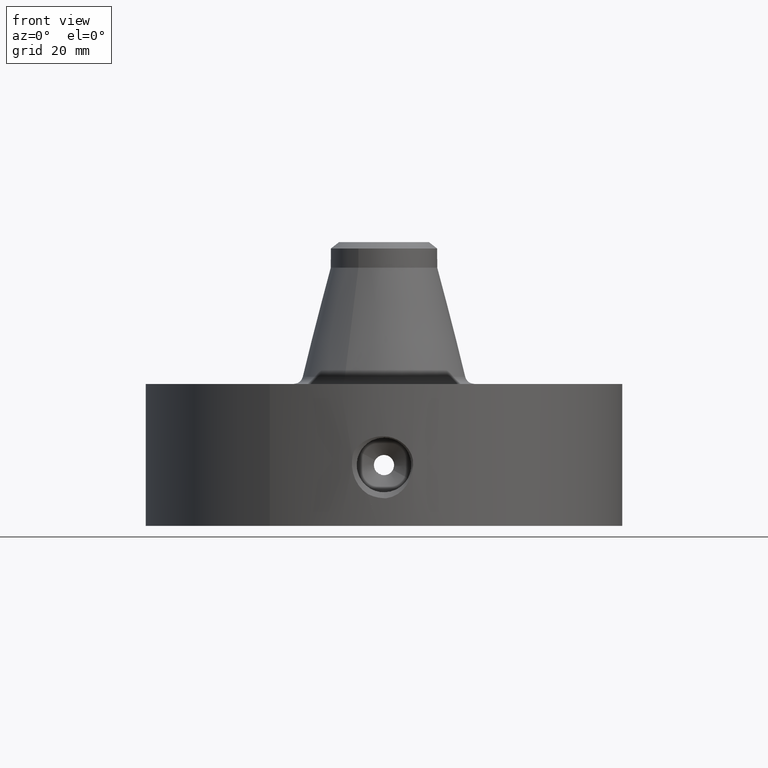
[diagram: clean part render]
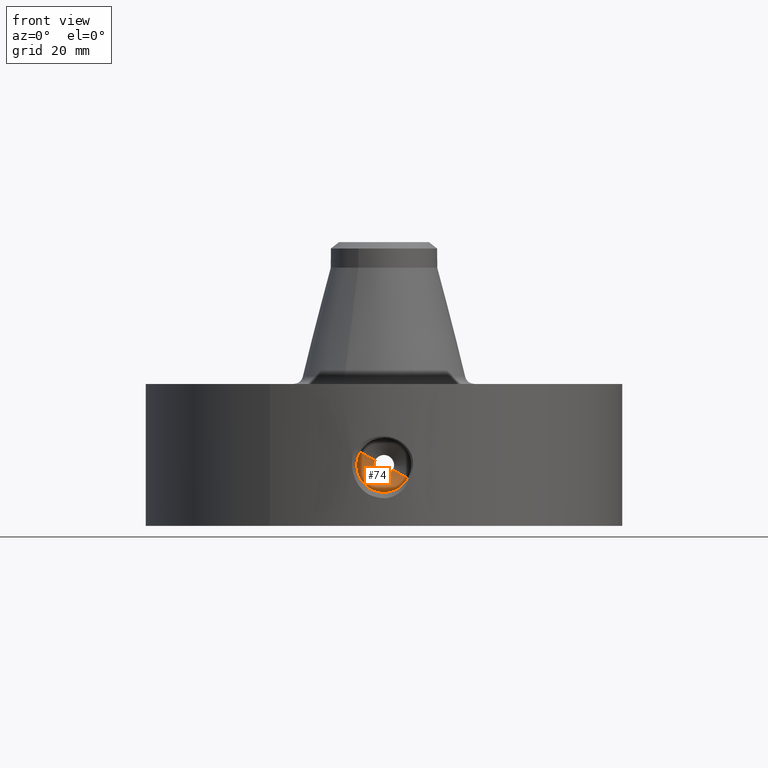
[diagram: same view with one face highlighted and labeled with its STEP entity id]
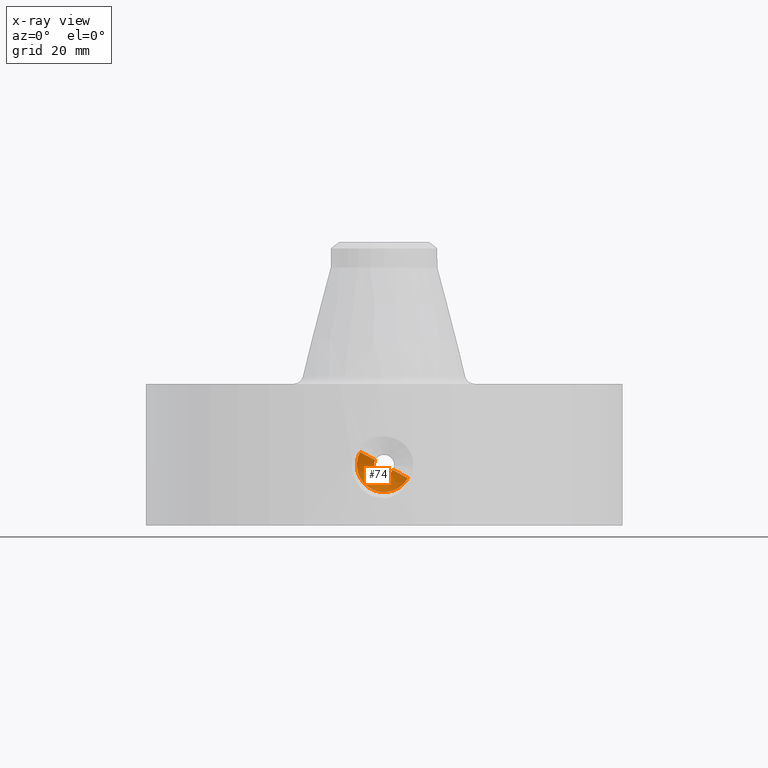
[diagram: x-ray of the same camera — body ghosted, the highlighted face saturated]
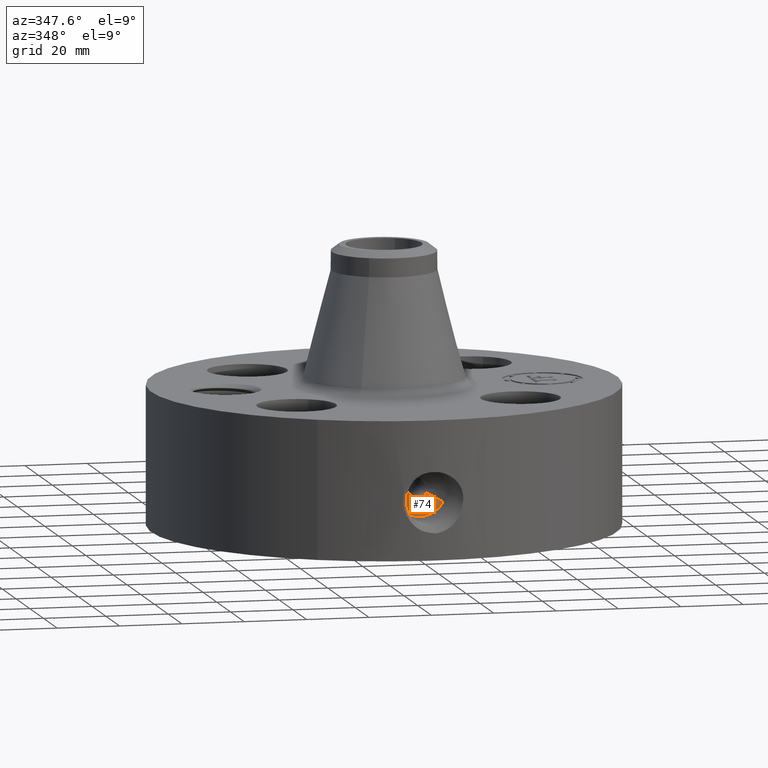
[diagram: same view with one face highlighted and labeled with its STEP entity id]
A machine part, front view. The second image highlights one B-rep face of the part: STEP entity #74.
The next image is the same camera in x-ray: the body ghosted, the highlighted face saturated — about 0% of this face is hidden behind the body in this view.
A second angle (auxiliary view) of the same face is appended — the face is thin or edge-on in the first view.
In plain terms, the highlighted conical surface has half-angle 60 deg.
Its self-contained STEP definition (entity closure, byte-faithful):
#38=AXIS2_PLACEMENT_3D('Cone Axis2P3D',#35,#36,#37) ;
#51=AXIS2_PLACEMENT_3D('Circle Axis2P3D',#49,#50,$) ;
#65=AXIS2_PLACEMENT_3D('Circle Axis2P3D',#63,#64,$) ;
#35=CARTESIAN_POINT('Axis2P3D Location',(3.26025971625E-015,-1.94321662098,0.750000000003)) ;
#40=CARTESIAN_POINT('Line Origine',(-0.202254259083,-2.00410831049,0.860492005322)) ;
#44=CARTESIAN_POINT('Vertex',(-0.109697820237,-1.94321662098,0.809928192329)) ;
#46=CARTESIAN_POINT('Vertex',(-0.29481069793,-2.06500000001,0.911055818315)) ;
#49=CARTESIAN_POINT('Axis2P3D Location',(3.23788847245E-015,-2.06500000001,0.750000000003)) ;
#53=CARTESIAN_POINT('Vertex',(0.29481069793,-2.06500000001,0.588944181691)) ;
#56=CARTESIAN_POINT('Line Origine',(0.202254259083,-2.00410831049,0.639507994684)) ;
#60=CARTESIAN_POINT('Vertex',(0.109697820237,-1.94321662098,0.690071807677)) ;
#63=CARTESIAN_POINT('Axis2P3D Location',(3.26025971625E-015,-1.94321662098,0.750000000003)) ;
#36=DIRECTION('Axis2P3D Direction',(-7.2321661367E-018,-0.0393700787402,0.)) ;
#37=DIRECTION('Axis2P3D XDirection',(0.0345504945626,-4.23385151202E-018,-0.0188750212049)) ;
#41=DIRECTION('Vector Direction',(-0.0299216060045,-0.0196850393701,0.0163462478604)) ;
#50=DIRECTION('Axis2P3D Direction',(-7.2321661367E-018,-0.0393700787402,0.)) ;
#57=DIRECTION('Vector Direction',(0.0299216060045,-0.0196850393701,-0.0163462478604)) ;
#64=DIRECTION('Axis2P3D Direction',(-7.2321661367E-018,-0.0393700787402,0.)) ;
#42=VECTOR('Line Direction',#41,0.0393700787402) ;
#58=VECTOR('Line Direction',#57,0.0393700787402) ;
#69=ORIENTED_EDGE('',*,*,#48,.T.) ;
#70=ORIENTED_EDGE('',*,*,#55,.F.) ;
#71=ORIENTED_EDGE('',*,*,#62,.F.) ;
#72=ORIENTED_EDGE('',*,*,#67,.T.) ;
#74=ADVANCED_FACE('PartBody',(#73),#39,.F.) ;
#52=CIRCLE('generated circle',#51,0.335935000001) ;
#66=CIRCLE('generated circle',#65,0.125) ;
#39=CONICAL_SURFACE('Cone',#38,0.125,1.0471975512) ;
#48=EDGE_CURVE('',#45,#47,#43,.T.) ;
#55=EDGE_CURVE('',#54,#47,#52,.F.) ;
#62=EDGE_CURVE('',#61,#54,#59,.T.) ;
#67=EDGE_CURVE('',#61,#45,#66,.F.) ;
#68=EDGE_LOOP('',(#69,#70,#71,#72)) ;
#73=FACE_OUTER_BOUND('',#68,.T.) ;
#43=LINE('Line',#40,#42) ;
#59=LINE('Line',#56,#58) ;
#45=VERTEX_POINT('',#44) ;
#47=VERTEX_POINT('',#46) ;
#54=VERTEX_POINT('',#53) ;
#61=VERTEX_POINT('',#60) ;